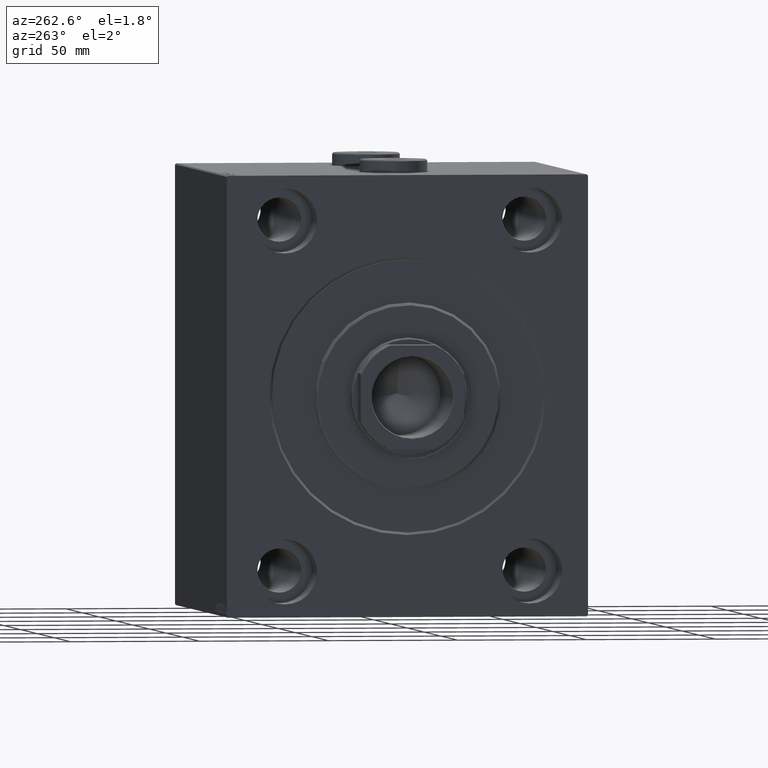
[diagram: clean part render]
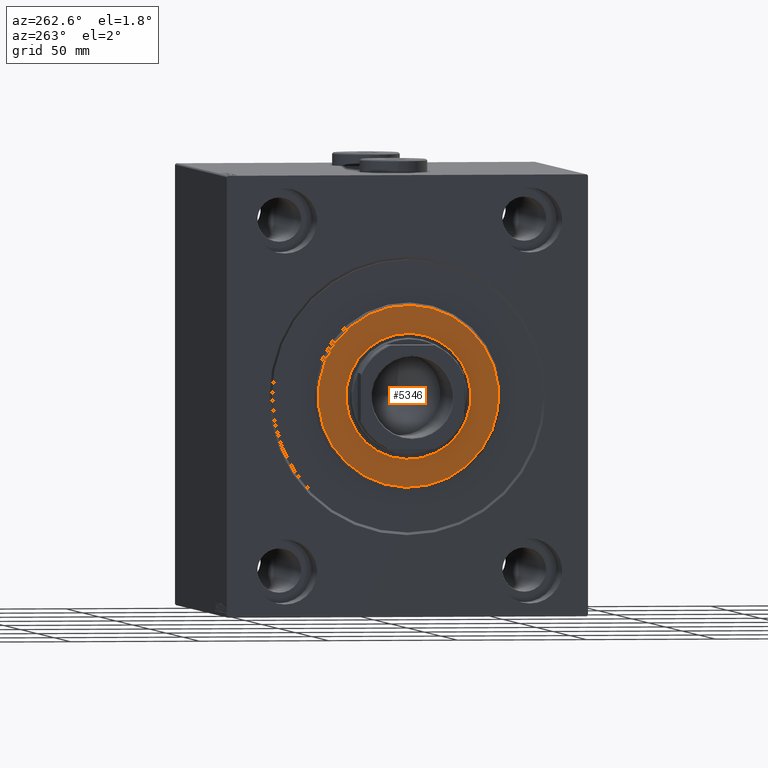
[diagram: same view with one face highlighted and labeled with its STEP entity id]
A machine part, auxiliary view. The second image highlights one B-rep face of the part: STEP entity #5346.
In plain terms, the highlighted planar face has unit normal (-1, 0, 0).
Its self-contained STEP definition (entity closure, byte-faithful):
#1344 = DIRECTION ( 'NONE',  ( 0.000000000000000000, 0.000000000000000000, -1.000000000000000000 ) ) ;
#3213 = PLANE ( 'NONE',  #21124 ) ;
#3568 = CIRCLE ( 'NONE', #19681, 35.00000000000002842 ) ;
#3661 = DIRECTION ( 'NONE',  ( 1.000000000000000000, -0.000000000000000000, 0.000000000000000000 ) ) ;
#4079 = VERTEX_POINT ( 'NONE', #43872 ) ;
#4156 = ORIENTED_EDGE ( 'NONE', *, *, #35430, .T. ) ;
#4616 = VERTEX_POINT ( 'NONE', #15822 ) ;
#4803 = CARTESIAN_POINT ( 'NONE',  ( 3.000000000000000000, 0.000000000000000000, 24.25000000000000000 ) ) ;
#5346 = ADVANCED_FACE ( 'NONE', ( #17206, #20871 ), #3213, .T. ) ;
#6885 = EDGE_CURVE ( 'NONE', #4616, #27686, #3568, .T. ) ;
#8542 = EDGE_CURVE ( 'NONE', #4079, #35046, #29233, .T. ) ;
#8682 = AXIS2_PLACEMENT_3D ( 'NONE', #43496, #11444, #1344 ) ;
#9044 = CARTESIAN_POINT ( 'NONE',  ( 3.000000000000000000, 0.000000000000000000, 0.000000000000000000 ) ) ;
#10008 = EDGE_LOOP ( 'NONE', ( #4156, #15219 ) ) ;
#10976 = CIRCLE ( 'NONE', #38791, 24.25000000000000000 ) ;
#11444 = DIRECTION ( 'NONE',  ( 1.000000000000000000, -0.000000000000000000, 0.000000000000000000 ) ) ;
#11784 = DIRECTION ( 'NONE',  ( -1.000000000000000000, 0.000000000000000000, -0.000000000000000000 ) ) ;
#12460 = EDGE_LOOP ( 'NONE', ( #44322, #41487 ) ) ;
#15219 = ORIENTED_EDGE ( 'NONE', *, *, #8542, .T. ) ;
#15452 = DIRECTION ( 'NONE',  ( 0.000000000000000000, 0.000000000000000000, -1.000000000000000000 ) ) ;
#15822 = CARTESIAN_POINT ( 'NONE',  ( 3.000000000000000000, 0.000000000000000000, 35.00000000000002842 ) ) ;
#15893 = CARTESIAN_POINT ( 'NONE',  ( 3.000000000000000000, 0.000000000000000000, 0.000000000000000000 ) ) ;
#16399 = DIRECTION ( 'NONE',  ( 0.000000000000000000, 0.000000000000000000, -1.000000000000000000 ) ) ;
#17206 = FACE_OUTER_BOUND ( 'NONE', #12460, .T. ) ;
#19681 = AXIS2_PLACEMENT_3D ( 'NONE', #9044, #30132, #16399 ) ;
#20871 = FACE_BOUND ( 'NONE', #10008, .T. ) ;
#21124 = AXIS2_PLACEMENT_3D ( 'NONE', #38294, #3661, #44695 ) ;
#23382 = CARTESIAN_POINT ( 'NONE',  ( 3.000000000000000000, 4.347496136973104859E-15, -35.00000000000002842 ) ) ;
#26884 = DIRECTION ( 'NONE',  ( 0.000000000000000000, 0.000000000000000000, -1.000000000000000000 ) ) ;
#27686 = VERTEX_POINT ( 'NONE', #23382 ) ;
#29233 = CIRCLE ( 'NONE', #40967, 24.25000000000000000 ) ;
#30132 = DIRECTION ( 'NONE',  ( 1.000000000000000000, -0.000000000000000000, 0.000000000000000000 ) ) ;
#32927 = EDGE_CURVE ( 'NONE', #27686, #4616, #42379, .T. ) ;
#35046 = VERTEX_POINT ( 'NONE', #4803 ) ;
#35430 = EDGE_CURVE ( 'NONE', #35046, #4079, #10976, .T. ) ;
#38294 = CARTESIAN_POINT ( 'NONE',  ( 3.000000000000000000, 0.000000000000000000, 0.000000000000000000 ) ) ;
#38791 = AXIS2_PLACEMENT_3D ( 'NONE', #15893, #11784, #15452 ) ;
#40190 = DIRECTION ( 'NONE',  ( -1.000000000000000000, 0.000000000000000000, -0.000000000000000000 ) ) ;
#40967 = AXIS2_PLACEMENT_3D ( 'NONE', #44298, #40190, #26884 ) ;
#41487 = ORIENTED_EDGE ( 'NONE', *, *, #32927, .T. ) ;
#42379 = CIRCLE ( 'NONE', #8682, 35.00000000000002842 ) ;
#43496 = CARTESIAN_POINT ( 'NONE',  ( 3.000000000000000000, 0.000000000000000000, 0.000000000000000000 ) ) ;
#43872 = CARTESIAN_POINT ( 'NONE',  ( 3.000000000000000000, 2.969768487932331287E-15, -24.25000000000000000 ) ) ;
#44298 = CARTESIAN_POINT ( 'NONE',  ( 3.000000000000000000, 0.000000000000000000, 0.000000000000000000 ) ) ;
#44322 = ORIENTED_EDGE ( 'NONE', *, *, #6885, .T. ) ;
#44695 = DIRECTION ( 'NONE',  ( 0.000000000000000000, 0.000000000000000000, -1.000000000000000000 ) ) ;